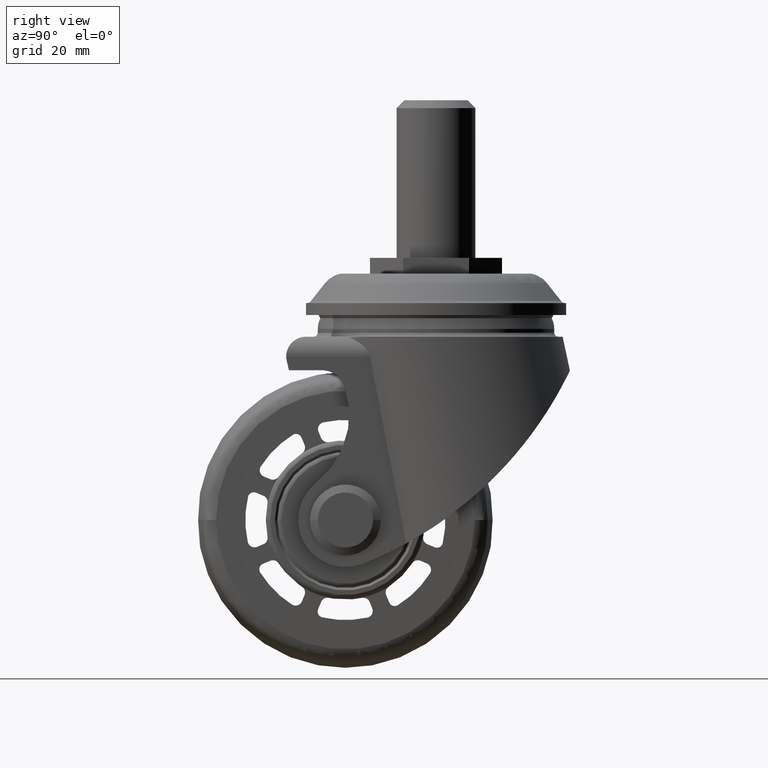
[diagram: clean part render]
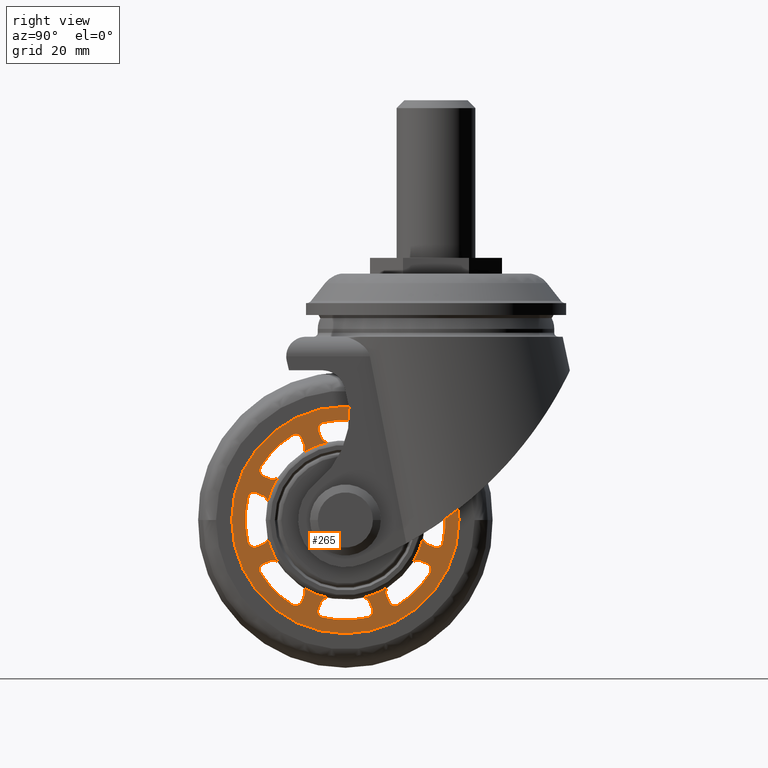
[diagram: same view with one face highlighted and labeled with its STEP entity id]
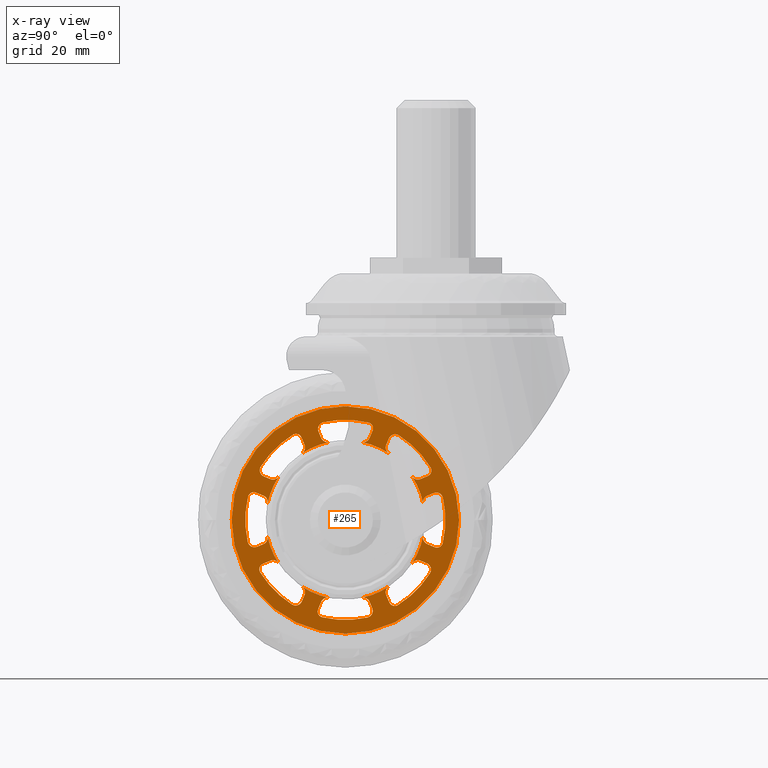
[diagram: x-ray of the same camera — body ghosted, the highlighted face saturated]
A machine part, right view. The second image highlights one B-rep face of the part: STEP entity #265.
The next image is the same camera in x-ray: the body ghosted, the highlighted face saturated — about 0% of this face is hidden behind the body in this view.
In plain terms, the highlighted planar face has unit normal (1, 0, 0).
Its self-contained STEP definition (entity closure, byte-faithful):
#265=ADVANCED_FACE('',(#1871,#1872),#1870,.T.);
#1870=PLANE('',#3538);
#1871=FACE_OUTER_BOUND('',#3539,.T.);
#1872=FACE_BOUND('',#3540,.T.);
#3535=CARTESIAN_POINT('',(2.00000000000E+01,-5.99556041579E+01,6.63461530500E+01));
#3536=DIRECTION('',(1.00000000000E+00,0.00000000000E+00,0.00000000000E+00));
#3537=DIRECTION('',(0.00000000000E+00,0.00000000000E+00,-1.00000000000E+00));
#3538=AXIS2_PLACEMENT_3D('',#3535,#3536,#3537);
#3539=EDGE_LOOP('',(#4910,#4911));
#3540=EDGE_LOOP('',(#4912,#4913,#4914,#4915,#4916,#4917,#4918,#4919,#4920,#4921,#4922,#4923,#4924,#4925,#4926,#4927,#4928,#4929,#4930,#4931,#4932,#4933,#4934,#4935,#4936,#4937,#4938,#4939,#4940,#4941,#4942,#4943,#4944,#4945,#4946,#4947,#4948,#4949,#4950,#4951,#4952,#4953,#4954,#4955,#4956,#4957,#4958,#4959,#4960,#4961,#4962,#4963,#4964,#4965,#4966,#4967,#4968,#4969,#4970,#4971,#4972,#4973,#4974,#4975));
#4910=ORIENTED_EDGE('',*,*,#5663,.T.);
#4911=ORIENTED_EDGE('',*,*,#5664,.T.);
#4912=ORIENTED_EDGE('',*,*,#5506,.F.);
#4913=ORIENTED_EDGE('',*,*,#5510,.F.);
#4914=ORIENTED_EDGE('',*,*,#5513,.F.);
#4915=ORIENTED_EDGE('',*,*,#5516,.F.);
#4916=ORIENTED_EDGE('',*,*,#5496,.F.);
#4917=ORIENTED_EDGE('',*,*,#5500,.F.);
#4918=ORIENTED_EDGE('',*,*,#5503,.F.);
#4919=ORIENTED_EDGE('',*,*,#5665,.F.);
#4920=ORIENTED_EDGE('',*,*,#5594,.F.);
#4921=ORIENTED_EDGE('',*,*,#5598,.F.);
#4922=ORIENTED_EDGE('',*,*,#5601,.F.);
#4923=ORIENTED_EDGE('',*,*,#5604,.F.);
#4924=ORIENTED_EDGE('',*,*,#5584,.F.);
#4925=ORIENTED_EDGE('',*,*,#5588,.F.);
#4926=ORIENTED_EDGE('',*,*,#5591,.F.);
#4927=ORIENTED_EDGE('',*,*,#5666,.F.);
#4928=ORIENTED_EDGE('',*,*,#5616,.F.);
#4929=ORIENTED_EDGE('',*,*,#5620,.F.);
#4930=ORIENTED_EDGE('',*,*,#5623,.F.);
#4931=ORIENTED_EDGE('',*,*,#5626,.F.);
#4932=ORIENTED_EDGE('',*,*,#5606,.F.);
#4933=ORIENTED_EDGE('',*,*,#5610,.F.);
#4934=ORIENTED_EDGE('',*,*,#5613,.F.);
#4935=ORIENTED_EDGE('',*,*,#5667,.F.);
#4936=ORIENTED_EDGE('',*,*,#5479,.F.);
#4937=ORIENTED_EDGE('',*,*,#5487,.F.);
#4938=ORIENTED_EDGE('',*,*,#5490,.F.);
#4939=ORIENTED_EDGE('',*,*,#5493,.F.);
#4940=ORIENTED_EDGE('',*,*,#5668,.F.);
#4941=ORIENTED_EDGE('',*,*,#5669,.F.);
#4942=ORIENTED_EDGE('',*,*,#5483,.F.);
#4943=ORIENTED_EDGE('',*,*,#5670,.F.);
#4944=ORIENTED_EDGE('',*,*,#5671,.F.);
#4945=ORIENTED_EDGE('',*,*,#5672,.F.);
#4946=ORIENTED_EDGE('',*,*,#5673,.F.);
#4947=ORIENTED_EDGE('',*,*,#5674,.F.);
#4948=ORIENTED_EDGE('',*,*,#5675,.F.);
#4949=ORIENTED_EDGE('',*,*,#5676,.F.);
#4950=ORIENTED_EDGE('',*,*,#5677,.F.);
#4951=ORIENTED_EDGE('',*,*,#5678,.F.);
#4952=ORIENTED_EDGE('',*,*,#5572,.F.);
#4953=ORIENTED_EDGE('',*,*,#5576,.F.);
#4954=ORIENTED_EDGE('',*,*,#5579,.F.);
#4955=ORIENTED_EDGE('',*,*,#5582,.F.);
#4956=ORIENTED_EDGE('',*,*,#5562,.F.);
#4957=ORIENTED_EDGE('',*,*,#5566,.F.);
#4958=ORIENTED_EDGE('',*,*,#5569,.F.);
#4959=ORIENTED_EDGE('',*,*,#5679,.F.);
#4960=ORIENTED_EDGE('',*,*,#5550,.F.);
#4961=ORIENTED_EDGE('',*,*,#5554,.F.);
#4962=ORIENTED_EDGE('',*,*,#5557,.F.);
#4963=ORIENTED_EDGE('',*,*,#5560,.F.);
#4964=ORIENTED_EDGE('',*,*,#5540,.F.);
#4965=ORIENTED_EDGE('',*,*,#5544,.F.);
#4966=ORIENTED_EDGE('',*,*,#5547,.F.);
#4967=ORIENTED_EDGE('',*,*,#5680,.F.);
#4968=ORIENTED_EDGE('',*,*,#5528,.F.);
#4969=ORIENTED_EDGE('',*,*,#5532,.F.);
#4970=ORIENTED_EDGE('',*,*,#5535,.F.);
#4971=ORIENTED_EDGE('',*,*,#5538,.F.);
#4972=ORIENTED_EDGE('',*,*,#5518,.F.);
#4973=ORIENTED_EDGE('',*,*,#5522,.F.);
#4974=ORIENTED_EDGE('',*,*,#5525,.F.);
#4975=ORIENTED_EDGE('',*,*,#5681,.F.);
#5479=EDGE_CURVE('',#7383,#7384,#7385,.T.);
#5483=EDGE_CURVE('',#7411,#7412,#7413,.T.);
#5487=EDGE_CURVE('',#7439,#7383,#7440,.T.);
#5490=EDGE_CURVE('',#7459,#7439,#7460,.T.);
#5493=EDGE_CURVE('',#7479,#7459,#7480,.T.);
#5496=EDGE_CURVE('',#7499,#7500,#7501,.T.);
#5500=EDGE_CURVE('',#7527,#7499,#7528,.T.);
#5503=EDGE_CURVE('',#7547,#7527,#7548,.T.);
#5506=EDGE_CURVE('',#7567,#7568,#7569,.T.);
#5510=EDGE_CURVE('',#7595,#7567,#7596,.T.);
#5513=EDGE_CURVE('',#7615,#7595,#7616,.T.);
#5516=EDGE_CURVE('',#7500,#7615,#7635,.T.);
#5518=EDGE_CURVE('',#7647,#7648,#7649,.T.);
#5522=EDGE_CURVE('',#7675,#7647,#7676,.T.);
#5525=EDGE_CURVE('',#7695,#7675,#7696,.T.);
#5528=EDGE_CURVE('',#7715,#7716,#7717,.T.);
#5532=EDGE_CURVE('',#7743,#7715,#7744,.T.);
#5535=EDGE_CURVE('',#7763,#7743,#7764,.T.);
#5538=EDGE_CURVE('',#7648,#7763,#7783,.T.);
#5540=EDGE_CURVE('',#7795,#7796,#7797,.T.);
#5544=EDGE_CURVE('',#7823,#7795,#7824,.T.);
#5547=EDGE_CURVE('',#7843,#7823,#7844,.T.);
#5550=EDGE_CURVE('',#7863,#7864,#7865,.T.);
#5554=EDGE_CURVE('',#7891,#7863,#7892,.T.);
#5557=EDGE_CURVE('',#7911,#7891,#7912,.T.);
#5560=EDGE_CURVE('',#7796,#7911,#7931,.T.);
#5562=EDGE_CURVE('',#7943,#7944,#7945,.T.);
#5566=EDGE_CURVE('',#7971,#7943,#7972,.T.);
#5569=EDGE_CURVE('',#7991,#7971,#7992,.T.);
#5572=EDGE_CURVE('',#8011,#8012,#8013,.T.);
#5576=EDGE_CURVE('',#8039,#8011,#8040,.T.);
#5579=EDGE_CURVE('',#8059,#8039,#8060,.T.);
#5582=EDGE_CURVE('',#7944,#8059,#8079,.T.);
#5584=EDGE_CURVE('',#8091,#8092,#8093,.T.);
#5588=EDGE_CURVE('',#8119,#8091,#8120,.T.);
#5591=EDGE_CURVE('',#8139,#8119,#8140,.T.);
#5594=EDGE_CURVE('',#8159,#8160,#8161,.T.);
#5598=EDGE_CURVE('',#8187,#8159,#8188,.T.);
#5601=EDGE_CURVE('',#8207,#8187,#8208,.T.);
#5604=EDGE_CURVE('',#8092,#8207,#8227,.T.);
#5606=EDGE_CURVE('',#8239,#8240,#8241,.T.);
#5610=EDGE_CURVE('',#8267,#8239,#8268,.T.);
#5613=EDGE_CURVE('',#8287,#8267,#8288,.T.);
#5616=EDGE_CURVE('',#8307,#8308,#8309,.T.);
#5620=EDGE_CURVE('',#8335,#8307,#8336,.T.);
#5623=EDGE_CURVE('',#8355,#8335,#8356,.T.);
#5626=EDGE_CURVE('',#8240,#8355,#8375,.T.);
#5663=EDGE_CURVE('',#8624,#8625,#8626,.T.);
#5664=EDGE_CURVE('',#8625,#8624,#8632,.T.);
#5665=EDGE_CURVE('',#8160,#7547,#8638,.T.);
#5666=EDGE_CURVE('',#8308,#8139,#8644,.T.);
#5667=EDGE_CURVE('',#7384,#8287,#8650,.T.);
#5668=EDGE_CURVE('',#8656,#7479,#8657,.T.);
#5669=EDGE_CURVE('',#7412,#8656,#8663,.T.);
#5670=EDGE_CURVE('',#8669,#7411,#8670,.T.);
#5671=EDGE_CURVE('',#8676,#8669,#8677,.T.);
#5672=EDGE_CURVE('',#8683,#8676,#8684,.T.);
#5673=EDGE_CURVE('',#8690,#8683,#8691,.T.);
#5674=EDGE_CURVE('',#8697,#8690,#8698,.T.);
#5675=EDGE_CURVE('',#8704,#8697,#8705,.T.);
#5676=EDGE_CURVE('',#8711,#8704,#8712,.T.);
#5677=EDGE_CURVE('',#8718,#8711,#8719,.T.);
#5678=EDGE_CURVE('',#8012,#8718,#8725,.T.);
#5679=EDGE_CURVE('',#7864,#7991,#8731,.T.);
#5680=EDGE_CURVE('',#7716,#7843,#8737,.T.);
#5681=EDGE_CURVE('',#7568,#7695,#8743,.T.);
#7383=VERTEX_POINT('',#10619);
#7384=VERTEX_POINT('',#10620);
#7385=CIRCLE('',#10624,1.73076923077E+00);
#7411=VERTEX_POINT('',#10637);
#7412=VERTEX_POINT('',#10638);
#7413=CIRCLE('',#10642,1.73076900000E+00);
#7439=VERTEX_POINT('',#10655);
#7440=LINE('',#10656,#10657);
#7459=VERTEX_POINT('',#10666);
#7460=CIRCLE('',#10670,1.73076923077E+00);
#7479=VERTEX_POINT('',#10679);
#7480=CIRCLE('',#10683,2.53846155000E+01);
#7499=VERTEX_POINT('',#10692);
#7500=VERTEX_POINT('',#10693);
#7501=CIRCLE('',#10697,1.50000000000E+00);
#7527=VERTEX_POINT('',#10710);
#7528=LINE('',#10711,#10712);
#7547=VERTEX_POINT('',#10721);
#7548=CIRCLE('',#10725,1.73076900000E+00);
#7567=VERTEX_POINT('',#10734);
#7568=VERTEX_POINT('',#10735);
#7569=CIRCLE('',#10739,1.73076923077E+00);
#7595=VERTEX_POINT('',#10752);
#7596=LINE('',#10753,#10754);
#7615=VERTEX_POINT('',#10763);
#7616=CIRCLE('',#10767,1.73076923077E+00);
#7635=CIRCLE('',#10779,2.53846155000E+01);
#7647=VERTEX_POINT('',#10784);
#7648=VERTEX_POINT('',#10785);
#7649=CIRCLE('',#10789,1.50000000000E+00);
#7675=VERTEX_POINT('',#10802);
#7676=LINE('',#10803,#10804);
#7695=VERTEX_POINT('',#10813);
#7696=CIRCLE('',#10817,1.73076900000E+00);
#7715=VERTEX_POINT('',#10826);
#7716=VERTEX_POINT('',#10827);
#7717=CIRCLE('',#10831,1.73076923077E+00);
#7743=VERTEX_POINT('',#10844);
#7744=LINE('',#10845,#10846);
#7763=VERTEX_POINT('',#10855);
#7764=CIRCLE('',#10859,1.73076923077E+00);
#7783=CIRCLE('',#10871,2.53846155000E+01);
#7795=VERTEX_POINT('',#10876);
#7796=VERTEX_POINT('',#10877);
#7797=CIRCLE('',#10881,1.50000000000E+00);
#7823=VERTEX_POINT('',#10894);
#7824=LINE('',#10895,#10896);
#7843=VERTEX_POINT('',#10905);
#7844=CIRCLE('',#10909,1.73076900000E+00);
#7863=VERTEX_POINT('',#10918);
#7864=VERTEX_POINT('',#10919);
#7865=CIRCLE('',#10923,1.73076923077E+00);
#7891=VERTEX_POINT('',#10936);
#7892=LINE('',#10937,#10938);
#7911=VERTEX_POINT('',#10947);
#7912=CIRCLE('',#10951,1.73076923077E+00);
#7931=CIRCLE('',#10963,2.53846155000E+01);
#7943=VERTEX_POINT('',#10968);
#7944=VERTEX_POINT('',#10969);
#7945=CIRCLE('',#10973,1.50000000000E+00);
#7971=VERTEX_POINT('',#10986);
#7972=LINE('',#10987,#10988);
#7991=VERTEX_POINT('',#10997);
#7992=CIRCLE('',#11001,1.73076900000E+00);
#8011=VERTEX_POINT('',#11010);
#8012=VERTEX_POINT('',#11011);
#8013=CIRCLE('',#11015,1.73076923077E+00);
#8039=VERTEX_POINT('',#11028);
#8040=LINE('',#11029,#11030);
#8059=VERTEX_POINT('',#11039);
#8060=CIRCLE('',#11043,1.73076923077E+00);
#8079=CIRCLE('',#11055,2.53846155000E+01);
#8091=VERTEX_POINT('',#11060);
#8092=VERTEX_POINT('',#11061);
#8093=CIRCLE('',#11065,1.50000000000E+00);
#8119=VERTEX_POINT('',#11078);
#8120=LINE('',#11079,#11080);
#8139=VERTEX_POINT('',#11089);
#8140=CIRCLE('',#11093,1.73076900000E+00);
#8159=VERTEX_POINT('',#11102);
#8160=VERTEX_POINT('',#11103);
#8161=CIRCLE('',#11107,1.73076923077E+00);
#8187=VERTEX_POINT('',#11120);
#8188=LINE('',#11121,#11122);
#8207=VERTEX_POINT('',#11131);
#8208=CIRCLE('',#11135,1.73076923077E+00);
#8227=CIRCLE('',#11147,2.53846155000E+01);
#8239=VERTEX_POINT('',#11152);
#8240=VERTEX_POINT('',#11153);
#8241=CIRCLE('',#11157,1.50000000000E+00);
#8267=VERTEX_POINT('',#11170);
#8268=LINE('',#11171,#11172);
#8287=VERTEX_POINT('',#11181);
#8288=CIRCLE('',#11185,1.73076900000E+00);
#8307=VERTEX_POINT('',#11194);
#8308=VERTEX_POINT('',#11195);
#8309=CIRCLE('',#11199,1.73076923077E+00);
#8335=VERTEX_POINT('',#11212);
#8336=LINE('',#11213,#11214);
#8355=VERTEX_POINT('',#11223);
#8356=CIRCLE('',#11227,1.73076923077E+00);
#8375=CIRCLE('',#11239,2.53846155000E+01);
#8624=VERTEX_POINT('',#11408);
#8625=VERTEX_POINT('',#11409);
#8626=CIRCLE('',#11413,2.88461535000E+01);
#8632=CIRCLE('',#11417,2.88461535000E+01);
#8638=CIRCLE('',#11421,2.01923076923E+01);
#8644=CIRCLE('',#11425,2.01923076923E+01);
#8650=CIRCLE('',#11429,2.01923076923E+01);
#8656=VERTEX_POINT('',#11430);
#8657=CIRCLE('',#11434,1.50000000000E+00);
#8663=LINE('',#11435,#11436);
#8669=VERTEX_POINT('',#11438);
#8670=CIRCLE('',#11442,2.01923076923E+01);
#8676=VERTEX_POINT('',#11443);
#8677=CIRCLE('',#11447,1.73076923077E+00);
#8683=VERTEX_POINT('',#11448);
#8684=LINE('',#11449,#11450);
#8690=VERTEX_POINT('',#11452);
#8691=CIRCLE('',#11456,1.73076923077E+00);
#8697=VERTEX_POINT('',#11457);
#8698=CIRCLE('',#11461,2.53846155000E+01);
#8704=VERTEX_POINT('',#11462);
#8705=CIRCLE('',#11466,1.50000000000E+00);
#8711=VERTEX_POINT('',#11467);
#8712=LINE('',#11468,#11469);
#8718=VERTEX_POINT('',#11471);
#8719=CIRCLE('',#11475,1.73076900000E+00);
#8725=CIRCLE('',#11479,2.01923076923E+01);
#8731=CIRCLE('',#11483,2.01923076923E+01);
#8737=CIRCLE('',#11487,2.01923076923E+01);
#8743=CIRCLE('',#11491,2.01923076923E+01);
#10619=CARTESIAN_POINT('',(2.00000000000E+01,1.90444929284E+01,-1.03520560359E+01));
#10620=CARTESIAN_POINT('',(2.00000000000E+01,1.69287504772E+01,-1.10066660357E+01));
#10621=CARTESIAN_POINT('',(2.00000000000E+01,1.83797862808E+01,-1.19500945845E+01));
#10622=DIRECTION('',(1.00000000000E+00,0.00000000000E+00,0.00000000000E+00));
#10623=DIRECTION('',(-0.00000000000E+00,7.07106781187E-01,7.07106781187E-01));
#10624=AXIS2_PLACEMENT_3D('',#10621,#10622,#10623);
#10637=CARTESIAN_POINT('',(2.00000000000E+01,1.10066659188E+01,-1.69287506220E+01));
#10638=CARTESIAN_POINT('',(2.00000000000E+01,1.03520559621E+01,-1.90444927510E+01));
#10639=CARTESIAN_POINT('',(2.00000000000E+01,1.19500942976E+01,-1.83797861920E+01));
#10640=DIRECTION('',(1.00000000000E+00,0.00000000000E+00,0.00000000000E+00));
#10641=DIRECTION('',(-0.00000000000E+00,7.07106781187E-01,7.07106781187E-01));
#10642=AXIS2_PLACEMENT_3D('',#10639,#10640,#10641);
#10655=CARTESIAN_POINT('',(2.00000000000E+01,2.06674476613E+01,-1.10271266096E+01));
#10656=CARTESIAN_POINT('',(2.00000000000E+01,2.06674476613E+01,-1.10271266096E+01));
#10657=VECTOR('',#10658,1.75775491588E+00);
#10658=DIRECTION('',(0.00000000000E+00,-9.23311161398E-01,3.84052729762E-01));
#10666=CARTESIAN_POINT('',(2.00000000000E+01,2.14663562026E+01,-1.35489577262E+01));
#10667=CARTESIAN_POINT('',(2.00000000000E+01,2.00027410136E+01,-1.26251651582E+01));
#10668=DIRECTION('',(1.00000000000E+00,0.00000000000E+00,0.00000000000E+00));
#10669=DIRECTION('',(-0.00000000000E+00,8.45644331409E-01,-5.33746817092E-01));
#10670=AXIS2_PLACEMENT_3D('',#10667,#10668,#10669);
#10679=CARTESIAN_POINT('',(2.00000000000E+01,1.33025591041E+01,-2.16199127048E+01));
#10680=CARTESIAN_POINT('',(2.00000000000E+01,-1.26956694901E-13,1.37996407502E-13));
#10681=DIRECTION('',(1.00000000000E+00,0.00000000000E+00,0.00000000000E+00));
#10682=DIRECTION('',(-0.00000000000E+00,7.07106781187E-01,7.07106781187E-01));
#10683=AXIS2_PLACEMENT_3D('',#10680,#10681,#10682);
#10692=CARTESIAN_POINT('',(2.00000000000E+01,6.92039711298E+00,2.26627607150E+01));
#10693=CARTESIAN_POINT('',(2.00000000000E+01,5.88125713259E+00,2.46939166319E+01));
#10694=CARTESIAN_POINT('',(2.00000000000E+01,5.53372830361E+00,2.32347306557E+01));
#10695=DIRECTION('',(1.00000000000E+00,0.00000000000E+00,0.00000000000E+00));
#10696=DIRECTION('',(-0.00000000000E+00,-1.00000000000E+00,6.12323399574E-17));
#10697=AXIS2_PLACEMENT_3D('',#10694,#10695,#10696);
#10710=CARTESIAN_POINT('',(2.00000000000E+01,6.14648099847E+00,2.07864989386E+01));
#10711=CARTESIAN_POINT('',(2.00000000000E+01,6.14648099847E+00,2.07864989386E+01));
#10712=VECTOR('',#10713,2.02960695850E+00);
#10713=DIRECTION('',(0.00000000000E+00,3.81313293822E-01,9.24445872918E-01));
#10721=CARTESIAN_POINT('',(2.00000000000E+01,4.18754625241E+00,1.97533224713E+01));
#10722=CARTESIAN_POINT('',(2.00000000000E+01,4.54647873945E+00,2.14464641668E+01));
#10723=DIRECTION('',(1.00000000000E+00,0.00000000000E+00,0.00000000000E+00));
#10724=DIRECTION('',(-0.00000000000E+00,-1.00000000000E+00,6.12323399574E-17));
#10725=AXIS2_PLACEMENT_3D('',#10722,#10723,#10724);
#10734=CARTESIAN_POINT('',(2.00000000000E+01,-6.14648107173E+00,2.07864991162E+01));
#10735=CARTESIAN_POINT('',(2.00000000000E+01,-4.18754606735E+00,1.97533224515E+01));
#10736=CARTESIAN_POINT('',(2.00000000000E+01,-4.54647859937E+00,2.14464644324E+01));
#10737=DIRECTION('',(1.00000000000E+00,0.00000000000E+00,0.00000000000E+00));
#10738=DIRECTION('',(-0.00000000000E+00,-1.00000000000E+00,6.12323399574E-17));
#10739=AXIS2_PLACEMENT_3D('',#10736,#10737,#10738);
#10752=CARTESIAN_POINT('',(2.00000000000E+01,-6.81673638843E+00,2.24114483938E+01));
#10753=CARTESIAN_POINT('',(2.00000000000E+01,-6.81673638843E+00,2.24114483938E+01));
#10754=VECTOR('',#10755,1.75775491588E+00);
#10755=DIRECTION('',(0.00000000000E+00,3.81313293822E-01,-9.24445872918E-01));
#10763=CARTESIAN_POINT('',(2.00000000000E+01,-5.59844615198E+00,2.47595659244E+01));
#10764=CARTESIAN_POINT('',(2.00000000000E+01,-5.21673391608E+00,2.30714137100E+01));
#10765=DIRECTION('',(1.00000000000E+00,0.00000000000E+00,0.00000000000E+00));
#10766=DIRECTION('',(-0.00000000000E+00,-2.20544847409E-01,9.75376835014E-01));
#10767=AXIS2_PLACEMENT_3D('',#10764,#10765,#10766);
#10776=CARTESIAN_POINT('',(2.00000000000E+01,-7.80625564190E-15,-1.87350135405E-13));
#10777=DIRECTION('',(1.00000000000E+00,0.00000000000E+00,0.00000000000E+00));
#10778=DIRECTION('',(-0.00000000000E+00,-1.00000000000E+00,6.12323399574E-17));
#10779=AXIS2_PLACEMENT_3D('',#10776,#10777,#10778);
#10784=CARTESIAN_POINT('',(2.00000000000E+01,-1.11315320549E+01,2.09184515091E+01));
#10785=CARTESIAN_POINT('',(2.00000000000E+01,-1.33025591041E+01,2.16199127048E+01));
#10786=CARTESIAN_POINT('',(2.00000000000E+01,-1.25164987970E+01,2.03423724144E+01));
#10787=DIRECTION('',(1.00000000000E+00,0.00000000000E+00,-0.00000000000E+00));
#10788=DIRECTION('',(-0.00000000000E+00,-7.07106781187E-01,-7.07106781187E-01));
#10789=AXIS2_PLACEMENT_3D('',#10786,#10787,#10788);
#10802=CARTESIAN_POINT('',(2.00000000000E+01,-1.03520559621E+01,1.90444927510E+01));
#10803=CARTESIAN_POINT('',(2.00000000000E+01,-1.03520559621E+01,1.90444927510E+01));
#10804=VECTOR('',#10805,2.02960695850E+00);
#10805=DIRECTION('',(0.00000000000E+00,-3.84052729762E-01,9.23311161398E-01));
#10813=CARTESIAN_POINT('',(2.00000000000E+01,-1.10066659188E+01,1.69287506220E+01));
#10814=CARTESIAN_POINT('',(2.00000000000E+01,-1.19500942976E+01,1.83797861920E+01));
#10815=DIRECTION('',(1.00000000000E+00,0.00000000000E+00,-0.00000000000E+00));
#10816=DIRECTION('',(-0.00000000000E+00,-7.07106781187E-01,-7.07106781187E-01));
#10817=AXIS2_PLACEMENT_3D('',#10814,#10815,#10816);
#10826=CARTESIAN_POINT('',(2.00000000000E+01,-1.90444929284E+01,1.03520560359E+01));
#10827=CARTESIAN_POINT('',(2.00000000000E+01,-1.69287504772E+01,1.10066660357E+01));
#10828=CARTESIAN_POINT('',(2.00000000000E+01,-1.83797862808E+01,1.19500945845E+01));
#10829=DIRECTION('',(1.00000000000E+00,0.00000000000E+00,-0.00000000000E+00));
#10830=DIRECTION('',(-0.00000000000E+00,-7.07106781187E-01,-7.07106781187E-01));
#10831=AXIS2_PLACEMENT_3D('',#10828,#10829,#10830);
#10844=CARTESIAN_POINT('',(2.00000000000E+01,-2.06674476613E+01,1.10271266096E+01));
#10845=CARTESIAN_POINT('',(2.00000000000E+01,-2.06674476613E+01,1.10271266096E+01));
#10846=VECTOR('',#10847,1.75775491588E+00);
#10847=DIRECTION('',(0.00000000000E+00,9.23311161398E-01,-3.84052729762E-01));
#10855=CARTESIAN_POINT('',(2.00000000000E+01,-2.14663562026E+01,1.35489577262E+01));
#10856=CARTESIAN_POINT('',(2.00000000000E+01,-2.00027410136E+01,1.26251651582E+01));
#10857=DIRECTION('',(1.00000000000E+00,0.00000000000E+00,0.00000000000E+00));
#10858=DIRECTION('',(0.00000000000E+00,-8.45644331409E-01,5.33746817092E-01));
#10859=AXIS2_PLACEMENT_3D('',#10856,#10857,#10858);
#10868=CARTESIAN_POINT('',(2.00000000000E+01,1.26956694901E-13,-1.37996407502E-13));
#10869=DIRECTION('',(1.00000000000E+00,0.00000000000E+00,-0.00000000000E+00));
#10870=DIRECTION('',(-0.00000000000E+00,-7.07106781187E-01,-7.07106781187E-01));
#10871=AXIS2_PLACEMENT_3D('',#10868,#10869,#10870);
#10876=CARTESIAN_POINT('',(2.00000000000E+01,-2.26627607150E+01,6.92039711298E+00));
#10877=CARTESIAN_POINT('',(2.00000000000E+01,-2.46939166319E+01,5.88125713259E+00));
#10878=CARTESIAN_POINT('',(2.00000000000E+01,-2.32347306557E+01,5.53372830361E+00));
#10879=DIRECTION('',(1.00000000000E+00,0.00000000000E+00,-0.00000000000E+00));
#10880=DIRECTION('',(-0.00000000000E+00,-1.22464679915E-16,-1.00000000000E+00));
#10881=AXIS2_PLACEMENT_3D('',#10878,#10879,#10880);
#10894=CARTESIAN_POINT('',(2.00000000000E+01,-2.07864989386E+01,6.14648099847E+00));
#10895=CARTESIAN_POINT('',(2.00000000000E+01,-2.07864989386E+01,6.14648099847E+00));
#10896=VECTOR('',#10897,2.02960695850E+00);
#10897=DIRECTION('',(0.00000000000E+00,-9.24445872918E-01,3.81313293822E-01));
#10905=CARTESIAN_POINT('',(2.00000000000E+01,-1.97533224713E+01,4.18754625241E+00));
#10906=CARTESIAN_POINT('',(2.00000000000E+01,-2.14464641668E+01,4.54647873945E+00));
#10907=DIRECTION('',(1.00000000000E+00,0.00000000000E+00,-0.00000000000E+00));
#10908=DIRECTION('',(-0.00000000000E+00,-1.22464679915E-16,-1.00000000000E+00));
#10909=AXIS2_PLACEMENT_3D('',#10906,#10907,#10908);
#10918=CARTESIAN_POINT('',(2.00000000000E+01,-2.07864991162E+01,-6.14648107173E+00));
#10919=CARTESIAN_POINT('',(2.00000000000E+01,-1.97533224515E+01,-4.18754606735E+00));
#10920=CARTESIAN_POINT('',(2.00000000000E+01,-2.14464644324E+01,-4.54647859937E+00));
#10921=DIRECTION('',(1.00000000000E+00,0.00000000000E+00,-0.00000000000E+00));
#10922=DIRECTION('',(-0.00000000000E+00,-1.22464679915E-16,-1.00000000000E+00));
#10923=AXIS2_PLACEMENT_3D('',#10920,#10921,#10922);
#10936=CARTESIAN_POINT('',(2.00000000000E+01,-2.24114483938E+01,-6.81673638843E+00));
#10937=CARTESIAN_POINT('',(2.00000000000E+01,-2.24114483938E+01,-6.81673638843E+00));
#10938=VECTOR('',#10939,1.75775491588E+00);
#10939=DIRECTION('',(0.00000000000E+00,9.24445872918E-01,3.81313293822E-01));
#10947=CARTESIAN_POINT('',(2.00000000000E+01,-2.47595659244E+01,-5.59844615198E+00));
#10948=CARTESIAN_POINT('',(2.00000000000E+01,-2.30714137100E+01,-5.21673391608E+00));
#10949=DIRECTION('',(1.00000000000E+00,0.00000000000E+00,0.00000000000E+00));
#10950=DIRECTION('',(0.00000000000E+00,-9.75376835014E-01,-2.20544847409E-01));
#10951=AXIS2_PLACEMENT_3D('',#10948,#10949,#10950);
#10960=CARTESIAN_POINT('',(2.00000000000E+01,1.87350135405E-13,-7.80625564190E-15));
#10961=DIRECTION('',(1.00000000000E+00,0.00000000000E+00,-0.00000000000E+00));
#10962=DIRECTION('',(-0.00000000000E+00,-1.22464679915E-16,-1.00000000000E+00));
#10963=AXIS2_PLACEMENT_3D('',#10960,#10961,#10962);
#10968=CARTESIAN_POINT('',(2.00000000000E+01,-2.09184515091E+01,-1.11315320549E+01));
#10969=CARTESIAN_POINT('',(2.00000000000E+01,-2.16199127048E+01,-1.33025591041E+01));
#10970=CARTESIAN_POINT('',(2.00000000000E+01,-2.03423724144E+01,-1.25164987970E+01));
#10971=DIRECTION('',(1.00000000000E+00,0.00000000000E+00,0.00000000000E+00));
#10972=DIRECTION('',(-0.00000000000E+00,7.07106781187E-01,-7.07106781187E-01));
#10973=AXIS2_PLACEMENT_3D('',#10970,#10971,#10972);
#10986=CARTESIAN_POINT('',(2.00000000000E+01,-1.90444927510E+01,-1.03520559621E+01));
#10987=CARTESIAN_POINT('',(2.00000000000E+01,-1.90444927510E+01,-1.03520559621E+01));
#10988=VECTOR('',#10989,2.02960695850E+00);
#10989=DIRECTION('',(0.00000000000E+00,-9.23311161398E-01,-3.84052729762E-01));
#10997=CARTESIAN_POINT('',(2.00000000000E+01,-1.69287506220E+01,-1.10066659188E+01));
#10998=CARTESIAN_POINT('',(2.00000000000E+01,-1.83797861920E+01,-1.19500942976E+01));
#10999=DIRECTION('',(1.00000000000E+00,0.00000000000E+00,0.00000000000E+00));
#11000=DIRECTION('',(-0.00000000000E+00,7.07106781187E-01,-7.07106781187E-01));
#11001=AXIS2_PLACEMENT_3D('',#10998,#10999,#11000);
#11010=CARTESIAN_POINT('',(2.00000000000E+01,-1.03520560359E+01,-1.90444929284E+01));
#11011=CARTESIAN_POINT('',(2.00000000000E+01,-1.10066660357E+01,-1.69287504772E+01));
#11012=CARTESIAN_POINT('',(2.00000000000E+01,-1.19500945845E+01,-1.83797862808E+01));
#11013=DIRECTION('',(1.00000000000E+00,0.00000000000E+00,0.00000000000E+00));
#11014=DIRECTION('',(-0.00000000000E+00,7.07106781187E-01,-7.07106781187E-01));
#11015=AXIS2_PLACEMENT_3D('',#11012,#11013,#11014);
#11028=CARTESIAN_POINT('',(2.00000000000E+01,-1.10271266096E+01,-2.06674476613E+01));
#11029=CARTESIAN_POINT('',(2.00000000000E+01,-1.10271266096E+01,-2.06674476613E+01));
#11030=VECTOR('',#11031,1.75775491588E+00);
#11031=DIRECTION('',(0.00000000000E+00,3.84052729762E-01,9.23311161398E-01));
#11039=CARTESIAN_POINT('',(2.00000000000E+01,-1.35489577262E+01,-2.14663562026E+01));
#11040=CARTESIAN_POINT('',(2.00000000000E+01,-1.26251651582E+01,-2.00027410136E+01));
#11041=DIRECTION('',(1.00000000000E+00,0.00000000000E+00,0.00000000000E+00));
#11042=DIRECTION('',(0.00000000000E+00,-5.33746817092E-01,-8.45644331409E-01));
#11043=AXIS2_PLACEMENT_3D('',#11040,#11041,#11042);
#11052=CARTESIAN_POINT('',(2.00000000000E+01,1.37996407502E-13,1.26956694901E-13));
#11053=DIRECTION('',(1.00000000000E+00,0.00000000000E+00,0.00000000000E+00));
#11054=DIRECTION('',(-0.00000000000E+00,7.07106781187E-01,-7.07106781187E-01));
#11055=AXIS2_PLACEMENT_3D('',#11052,#11053,#11054);
#11060=CARTESIAN_POINT('',(2.00000000000E+01,2.09184515091E+01,1.11315320549E+01));
#11061=CARTESIAN_POINT('',(2.00000000000E+01,2.16199127048E+01,1.33025591041E+01));
#11062=CARTESIAN_POINT('',(2.00000000000E+01,2.03423724144E+01,1.25164987970E+01));
#11063=DIRECTION('',(1.00000000000E+00,0.00000000000E+00,0.00000000000E+00));
#11064=DIRECTION('',(-0.00000000000E+00,-7.07106781187E-01,7.07106781187E-01));
#11065=AXIS2_PLACEMENT_3D('',#11062,#11063,#11064);
#11078=CARTESIAN_POINT('',(2.00000000000E+01,1.90444927510E+01,1.03520559621E+01));
#11079=CARTESIAN_POINT('',(2.00000000000E+01,1.90444927510E+01,1.03520559621E+01));
#11080=VECTOR('',#11081,2.02960695850E+00);
#11081=DIRECTION('',(0.00000000000E+00,9.23311161398E-01,3.84052729762E-01));
#11089=CARTESIAN_POINT('',(2.00000000000E+01,1.69287506220E+01,1.10066659188E+01));
#11090=CARTESIAN_POINT('',(2.00000000000E+01,1.83797861920E+01,1.19500942976E+01));
#11091=DIRECTION('',(1.00000000000E+00,0.00000000000E+00,0.00000000000E+00));
#11092=DIRECTION('',(-0.00000000000E+00,-7.07106781187E-01,7.07106781187E-01));
#11093=AXIS2_PLACEMENT_3D('',#11090,#11091,#11092);
#11102=CARTESIAN_POINT('',(2.00000000000E+01,1.03520560359E+01,1.90444929284E+01));
#11103=CARTESIAN_POINT('',(2.00000000000E+01,1.10066660357E+01,1.69287504772E+01));
#11104=CARTESIAN_POINT('',(2.00000000000E+01,1.19500945845E+01,1.83797862808E+01));
#11105=DIRECTION('',(1.00000000000E+00,0.00000000000E+00,0.00000000000E+00));
#11106=DIRECTION('',(-0.00000000000E+00,-7.07106781187E-01,7.07106781187E-01));
#11107=AXIS2_PLACEMENT_3D('',#11104,#11105,#11106);
#11120=CARTESIAN_POINT('',(2.00000000000E+01,1.10271266096E+01,2.06674476613E+01));
#11121=CARTESIAN_POINT('',(2.00000000000E+01,1.10271266096E+01,2.06674476613E+01));
#11122=VECTOR('',#11123,1.75775491588E+00);
#11123=DIRECTION('',(0.00000000000E+00,-3.84052729762E-01,-9.23311161398E-01));
#11131=CARTESIAN_POINT('',(2.00000000000E+01,1.35489577262E+01,2.14663562026E+01));
#11132=CARTESIAN_POINT('',(2.00000000000E+01,1.26251651582E+01,2.00027410136E+01));
#11133=DIRECTION('',(1.00000000000E+00,0.00000000000E+00,0.00000000000E+00));
#11134=DIRECTION('',(-0.00000000000E+00,5.33746817092E-01,8.45644331409E-01));
#11135=AXIS2_PLACEMENT_3D('',#11132,#11133,#11134);
#11144=CARTESIAN_POINT('',(2.00000000000E+01,-1.37996407502E-13,-1.26956694901E-13));
#11145=DIRECTION('',(1.00000000000E+00,0.00000000000E+00,0.00000000000E+00));
#11146=DIRECTION('',(-0.00000000000E+00,-7.07106781187E-01,7.07106781187E-01));
#11147=AXIS2_PLACEMENT_3D('',#11144,#11145,#11146);
#11152=CARTESIAN_POINT('',(2.00000000000E+01,2.26627607150E+01,-6.92039711298E+00));
#11153=CARTESIAN_POINT('',(2.00000000000E+01,2.46939166319E+01,-5.88125713259E+00));
#11154=CARTESIAN_POINT('',(2.00000000000E+01,2.32347306557E+01,-5.53372830361E+00));
#11155=DIRECTION('',(1.00000000000E+00,0.00000000000E+00,0.00000000000E+00));
#11156=DIRECTION('',(-0.00000000000E+00,-0.00000000000E+00,1.00000000000E+00));
#11157=AXIS2_PLACEMENT_3D('',#11154,#11155,#11156);
#11170=CARTESIAN_POINT('',(2.00000000000E+01,2.07864989386E+01,-6.14648099847E+00));
#11171=CARTESIAN_POINT('',(2.00000000000E+01,2.07864989386E+01,-6.14648099847E+00));
#11172=VECTOR('',#11173,2.02960695850E+00);
#11173=DIRECTION('',(0.00000000000E+00,9.24445872918E-01,-3.81313293822E-01));
#11181=CARTESIAN_POINT('',(2.00000000000E+01,1.97533224713E+01,-4.18754625241E+00));
#11182=CARTESIAN_POINT('',(2.00000000000E+01,2.14464641668E+01,-4.54647873945E+00));
#11183=DIRECTION('',(1.00000000000E+00,0.00000000000E+00,0.00000000000E+00));
#11184=DIRECTION('',(-0.00000000000E+00,-0.00000000000E+00,1.00000000000E+00));
#11185=AXIS2_PLACEMENT_3D('',#11182,#11183,#11184);
#11194=CARTESIAN_POINT('',(2.00000000000E+01,2.07864991162E+01,6.14648107173E+00));
#11195=CARTESIAN_POINT('',(2.00000000000E+01,1.97533225416E+01,4.18754592096E+00));
#11196=CARTESIAN_POINT('',(2.00000000000E+01,2.14464644324E+01,4.54647859937E+00));
#11197=DIRECTION('',(1.00000000000E+00,0.00000000000E+00,0.00000000000E+00));
#11198=DIRECTION('',(-0.00000000000E+00,-0.00000000000E+00,1.00000000000E+00));
#11199=AXIS2_PLACEMENT_3D('',#11196,#11197,#11198);
#11212=CARTESIAN_POINT('',(2.00000000000E+01,2.24114483938E+01,6.81673638843E+00));
#11213=CARTESIAN_POINT('',(2.00000000000E+01,2.24114483938E+01,6.81673638843E+00));
#11214=VECTOR('',#11215,1.75775491588E+00);
#11215=DIRECTION('',(0.00000000000E+00,-9.24445872918E-01,-3.81313293822E-01));
#11223=CARTESIAN_POINT('',(2.00000000000E+01,2.47595659244E+01,5.59844615198E+00));
#11224=CARTESIAN_POINT('',(2.00000000000E+01,2.30714137100E+01,5.21673391608E+00));
#11225=DIRECTION('',(1.00000000000E+00,0.00000000000E+00,0.00000000000E+00));
#11226=DIRECTION('',(-0.00000000000E+00,9.75376835014E-01,2.20544847409E-01));
#11227=AXIS2_PLACEMENT_3D('',#11224,#11225,#11226);
#11236=CARTESIAN_POINT('',(2.00000000000E+01,-1.87350135405E-13,7.80625564190E-15));
#11237=DIRECTION('',(1.00000000000E+00,0.00000000000E+00,0.00000000000E+00));
#11238=DIRECTION('',(-0.00000000000E+00,-0.00000000000E+00,1.00000000000E+00));
#11239=AXIS2_PLACEMENT_3D('',#11236,#11237,#11238);
#11408=CARTESIAN_POINT('',(2.00000000000E+01,0.00000000000E+00,-2.88461535000E+01));
#11409=CARTESIAN_POINT('',(2.00000000000E+01,1.18423789293E-15,2.88461535000E+01));
#11410=CARTESIAN_POINT('',(2.00000000000E+01,0.00000000000E+00,0.00000000000E+00));
#11411=DIRECTION('',(1.00000000000E+00,0.00000000000E+00,0.00000000000E+00));
#11412=DIRECTION('',(0.00000000000E+00,-1.22460635382E-16,-1.00000000000E+00));
#11413=AXIS2_PLACEMENT_3D('',#11410,#11411,#11412);
#11414=CARTESIAN_POINT('',(2.00000000000E+01,0.00000000000E+00,0.00000000000E+00));
#11415=DIRECTION('',(1.00000000000E+00,0.00000000000E+00,0.00000000000E+00));
#11416=DIRECTION('',(0.00000000000E+00,-1.22460635382E-16,-1.00000000000E+00));
#11417=AXIS2_PLACEMENT_3D('',#11414,#11415,#11416);
#11418=CARTESIAN_POINT('',(2.00000000000E+01,0.00000000000E+00,0.00000000000E+00));
#11419=DIRECTION('',(1.00000000000E+00,0.00000000000E+00,0.00000000000E+00));
#11420=DIRECTION('',(-0.00000000000E+00,-0.00000000000E+00,1.00000000000E+00));
#11421=AXIS2_PLACEMENT_3D('',#11418,#11419,#11420);
#11422=CARTESIAN_POINT('',(2.00000000000E+01,0.00000000000E+00,0.00000000000E+00));
#11423=DIRECTION('',(1.00000000000E+00,0.00000000000E+00,0.00000000000E+00));
#11424=DIRECTION('',(-0.00000000000E+00,-0.00000000000E+00,1.00000000000E+00));
#11425=AXIS2_PLACEMENT_3D('',#11422,#11423,#11424);
#11426=CARTESIAN_POINT('',(2.00000000000E+01,0.00000000000E+00,0.00000000000E+00));
#11427=DIRECTION('',(1.00000000000E+00,0.00000000000E+00,0.00000000000E+00));
#11428=DIRECTION('',(-0.00000000000E+00,-0.00000000000E+00,1.00000000000E+00));
#11429=AXIS2_PLACEMENT_3D('',#11426,#11427,#11428);
#11430=CARTESIAN_POINT('',(2.00000000000E+01,1.11315320549E+01,-2.09184515091E+01));
#11431=CARTESIAN_POINT('',(2.00000000000E+01,1.25164987970E+01,-2.03423724144E+01));
#11432=DIRECTION('',(1.00000000000E+00,0.00000000000E+00,0.00000000000E+00));
#11433=DIRECTION('',(-0.00000000000E+00,7.07106781187E-01,7.07106781187E-01));
#11434=AXIS2_PLACEMENT_3D('',#11431,#11432,#11433);
#11435=CARTESIAN_POINT('',(2.00000000000E+01,1.03520559621E+01,-1.90444927510E+01));
#11436=VECTOR('',#11437,2.02960695850E+00);
#11437=DIRECTION('',(0.00000000000E+00,3.84052729762E-01,-9.23311161398E-01));
#11438=CARTESIAN_POINT('',(2.00000000000E+01,4.18754606735E+00,-1.97533224515E+01));
#11439=CARTESIAN_POINT('',(2.00000000000E+01,0.00000000000E+00,0.00000000000E+00));
#11440=DIRECTION('',(1.00000000000E+00,0.00000000000E+00,0.00000000000E+00));
#11441=DIRECTION('',(-0.00000000000E+00,-0.00000000000E+00,1.00000000000E+00));
#11442=AXIS2_PLACEMENT_3D('',#11439,#11440,#11441);
#11443=CARTESIAN_POINT('',(2.00000000000E+01,6.14648107173E+00,-2.07864991162E+01));
#11444=CARTESIAN_POINT('',(2.00000000000E+01,4.54647859937E+00,-2.14464644324E+01));
#11445=DIRECTION('',(1.00000000000E+00,0.00000000000E+00,0.00000000000E+00));
#11446=DIRECTION('',(-0.00000000000E+00,1.00000000000E+00,-1.83697019872E-16));
#11447=AXIS2_PLACEMENT_3D('',#11444,#11445,#11446);
#11448=CARTESIAN_POINT('',(2.00000000000E+01,6.81673638843E+00,-2.24114483938E+01));
#11449=CARTESIAN_POINT('',(2.00000000000E+01,6.81673638843E+00,-2.24114483938E+01));
#11450=VECTOR('',#11451,1.75775491588E+00);
#11451=DIRECTION('',(0.00000000000E+00,-3.81313293822E-01,9.24445872918E-01));
#11452=CARTESIAN_POINT('',(2.00000000000E+01,5.59844615198E+00,-2.47595659244E+01));
#11453=CARTESIAN_POINT('',(2.00000000000E+01,5.21673391608E+00,-2.30714137100E+01));
#11454=DIRECTION('',(1.00000000000E+00,0.00000000000E+00,0.00000000000E+00));
#11455=DIRECTION('',(0.00000000000E+00,2.20544847409E-01,-9.75376835014E-01));
#11456=AXIS2_PLACEMENT_3D('',#11453,#11454,#11455);
#11457=CARTESIAN_POINT('',(2.00000000000E+01,-5.88125713259E+00,-2.46939166319E+01));
#11458=CARTESIAN_POINT('',(2.00000000000E+01,7.80625564190E-15,1.87350135405E-13));
#11459=DIRECTION('',(1.00000000000E+00,0.00000000000E+00,0.00000000000E+00));
#11460=DIRECTION('',(-0.00000000000E+00,1.00000000000E+00,-1.83697019872E-16));
#11461=AXIS2_PLACEMENT_3D('',#11458,#11459,#11460);
#11462=CARTESIAN_POINT('',(2.00000000000E+01,-6.92039711298E+00,-2.26627607150E+01));
#11463=CARTESIAN_POINT('',(2.00000000000E+01,-5.53372830361E+00,-2.32347306557E+01));
#11464=DIRECTION('',(1.00000000000E+00,0.00000000000E+00,0.00000000000E+00));
#11465=DIRECTION('',(-0.00000000000E+00,1.00000000000E+00,-1.83697019872E-16));
#11466=AXIS2_PLACEMENT_3D('',#11463,#11464,#11465);
#11467=CARTESIAN_POINT('',(2.00000000000E+01,-6.14648099847E+00,-2.07864989386E+01));
#11468=CARTESIAN_POINT('',(2.00000000000E+01,-6.14648099847E+00,-2.07864989386E+01));
#11469=VECTOR('',#11470,2.02960695850E+00);
#11470=DIRECTION('',(0.00000000000E+00,-3.81313293822E-01,-9.24445872918E-01));
#11471=CARTESIAN_POINT('',(2.00000000000E+01,-4.18754625241E+00,-1.97533224713E+01));
#11472=CARTESIAN_POINT('',(2.00000000000E+01,-4.54647873945E+00,-2.14464641668E+01));
#11473=DIRECTION('',(1.00000000000E+00,0.00000000000E+00,0.00000000000E+00));
#11474=DIRECTION('',(-0.00000000000E+00,1.00000000000E+00,-1.83697019872E-16));
#11475=AXIS2_PLACEMENT_3D('',#11472,#11473,#11474);
#11476=CARTESIAN_POINT('',(2.00000000000E+01,0.00000000000E+00,0.00000000000E+00));
#11477=DIRECTION('',(1.00000000000E+00,0.00000000000E+00,0.00000000000E+00));
#11478=DIRECTION('',(-0.00000000000E+00,-0.00000000000E+00,1.00000000000E+00));
#11479=AXIS2_PLACEMENT_3D('',#11476,#11477,#11478);
#11480=CARTESIAN_POINT('',(2.00000000000E+01,0.00000000000E+00,0.00000000000E+00));
#11481=DIRECTION('',(1.00000000000E+00,0.00000000000E+00,0.00000000000E+00));
#11482=DIRECTION('',(-0.00000000000E+00,-0.00000000000E+00,1.00000000000E+00));
#11483=AXIS2_PLACEMENT_3D('',#11480,#11481,#11482);
#11484=CARTESIAN_POINT('',(2.00000000000E+01,0.00000000000E+00,0.00000000000E+00));
#11485=DIRECTION('',(1.00000000000E+00,0.00000000000E+00,0.00000000000E+00));
#11486=DIRECTION('',(-0.00000000000E+00,-0.00000000000E+00,1.00000000000E+00));
#11487=AXIS2_PLACEMENT_3D('',#11484,#11485,#11486);
#11488=CARTESIAN_POINT('',(2.00000000000E+01,0.00000000000E+00,0.00000000000E+00));
#11489=DIRECTION('',(1.00000000000E+00,0.00000000000E+00,0.00000000000E+00));
#11490=DIRECTION('',(-0.00000000000E+00,-0.00000000000E+00,1.00000000000E+00));
#11491=AXIS2_PLACEMENT_3D('',#11488,#11489,#11490);